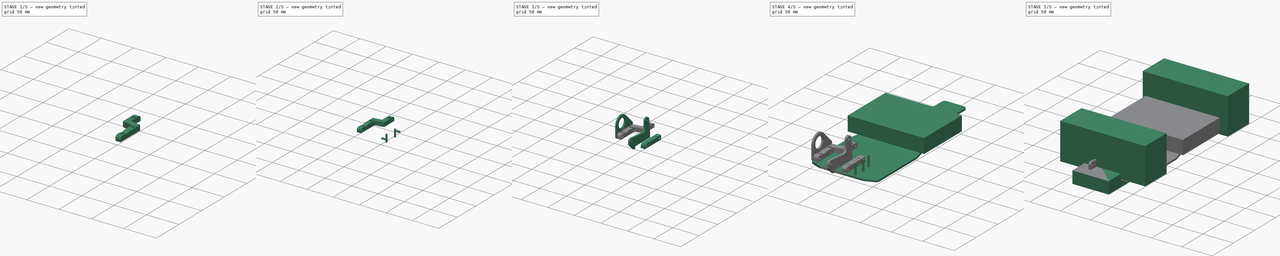
[diagram: build sequence overview — one tinted view per stage of 5, left to right]
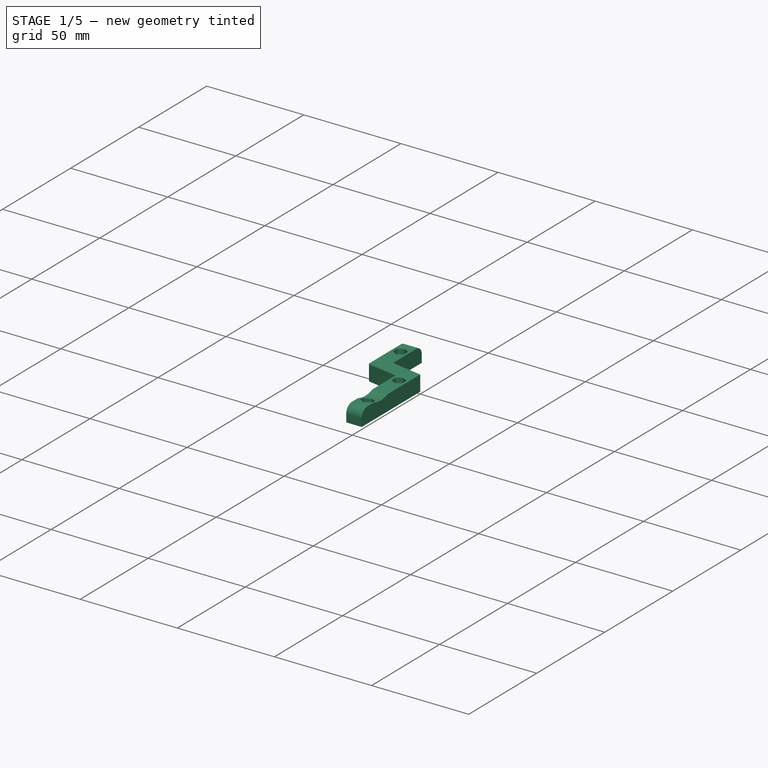
[diagram: stage 1 of 5 — iso view after this stage's code; geometry added in this stage tinted green]
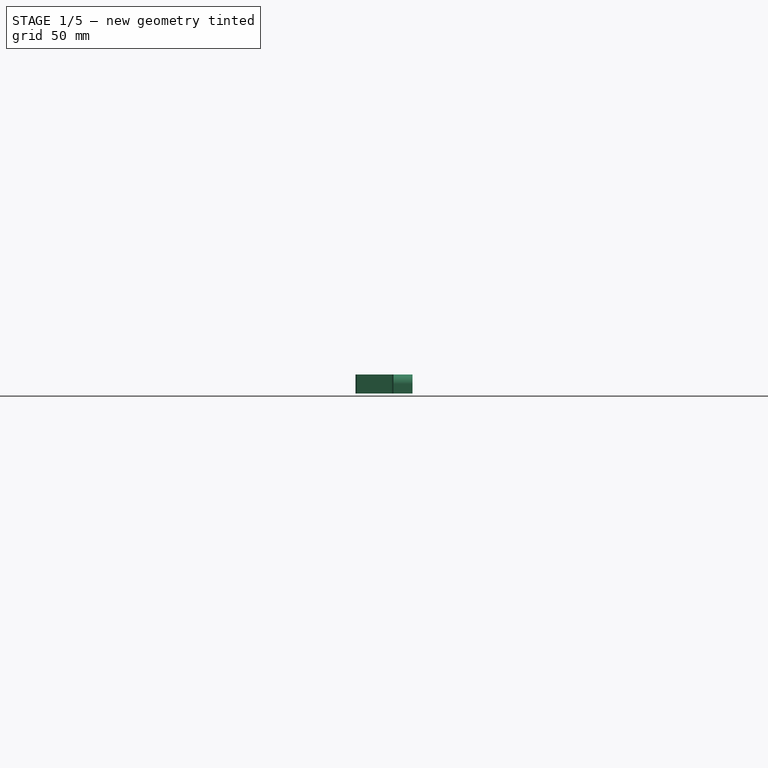
[diagram: stage 1 of 5 — front view after this stage's code; geometry added in this stage tinted green]
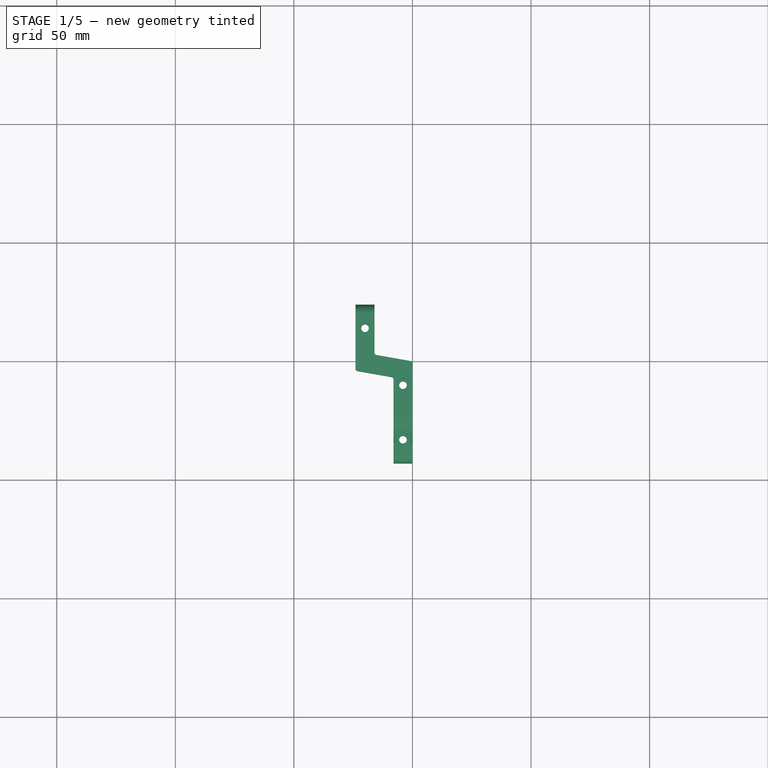
[diagram: stage 1 of 5 — top view after this stage's code; geometry added in this stage tinted green]
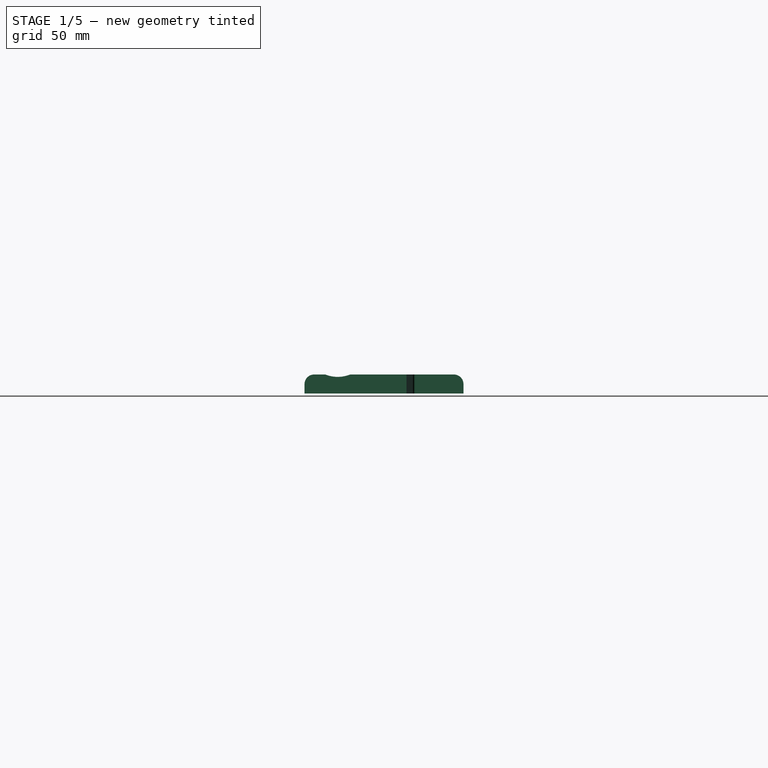
[diagram: stage 1 of 5 — right view after this stage's code; geometry added in this stage tinted green]
FCSTD DOCUMENT  (FreeCAD 0.16R6712 (Git))
Label: chassis
License: All rights reserved
LicenseURL: http://en.wikipedia.org/wiki/All_rights_reserved
objects: Part::Cylinder×15, Part::MultiFuse×8, Sketcher::SketchObject×7, Part::Cut×6, PartDesign::Pad×6, Part::Box×5, Part::Fillet×5, Part::Mirroring×4, Part::Prism×3
note: 65 computed .brp shape members not serialized (recipe doc carries the construction recipe); baked Part::Feature solids carry a one-line shape summary decoded from their .brp

FEATURE [PartDesign::Pad] Pad005
  Length = 8
  Length2 = 100
  Placement = pos=(0,0,4) rot=(0,0,1;0rad)
  Sketch = -> Sketch008
  Type = 0
FEATURE [Part::Fillet] Fillet003
  Base = -> Pad005
  Edges = 3 edges r=1: [Edge2,Edge5,Edge17]
FEATURE [Part::Fillet] Fillet004
  Base = -> Fillet003
  Edges = 2 edges r=4: [Edge21,Edge28]
FEATURE [Part::Prism] Prism
  Circumradius = 3.2
  Height = 10
  Placement = pos=(46,17,8) rot=(0,0,1;1.5708rad)
  Polygon = 6
FEATURE [Part::Prism] Prism001
  Circumradius = 3.2
  Height = 10
  Placement = pos=(46,40,8) rot=(0,0,1;1.5708rad)
  Polygon = 6
FEATURE [Part::Prism] Prism002
  Circumradius = 3.2
  Height = 10
  Placement = pos=(30,64,8) rot=(0,0,1;1.5708rad)
  Polygon = 6
FEATURE [Part::MultiFuse] Fusion009
  Shapes = -> [Prism002,Prism001,Prism]
FEATURE [Part::Cut] Cut004
  Base = -> Fillet004
  Tool = -> Fusion009
FEATURE [Part::Cylinder] Cylinder014
  Angle = 360
  Height = 16
  Placement = pos=(40,21,25) rot=(0,1,0;1.5708rad)
  Radius = 14
FEATURE [Part::Cut] Cut005
  Base = -> Cut004
  Tool = -> Cylinder014
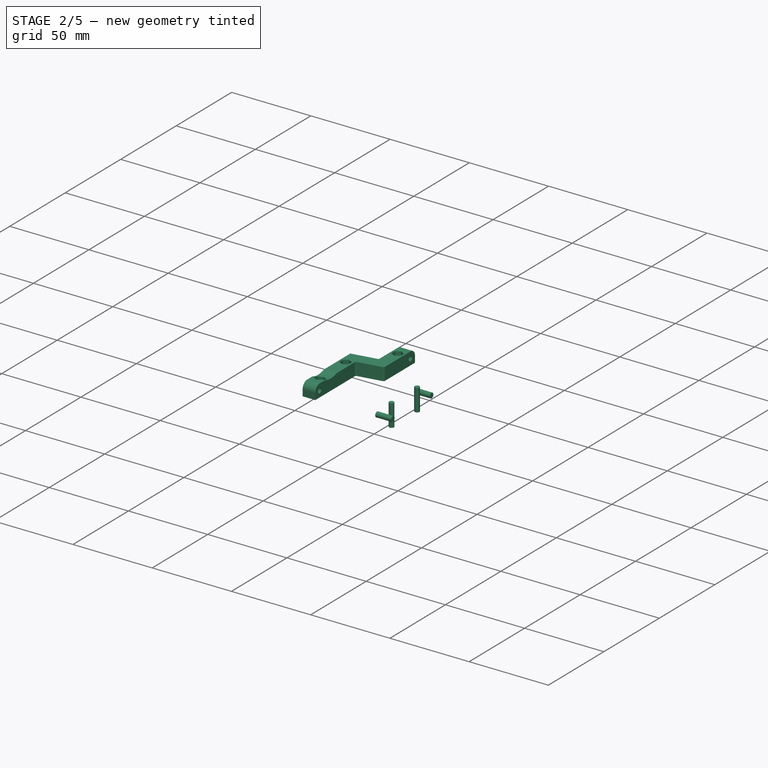
[diagram: stage 2 of 5 — iso view after this stage's code; geometry added in this stage tinted green]
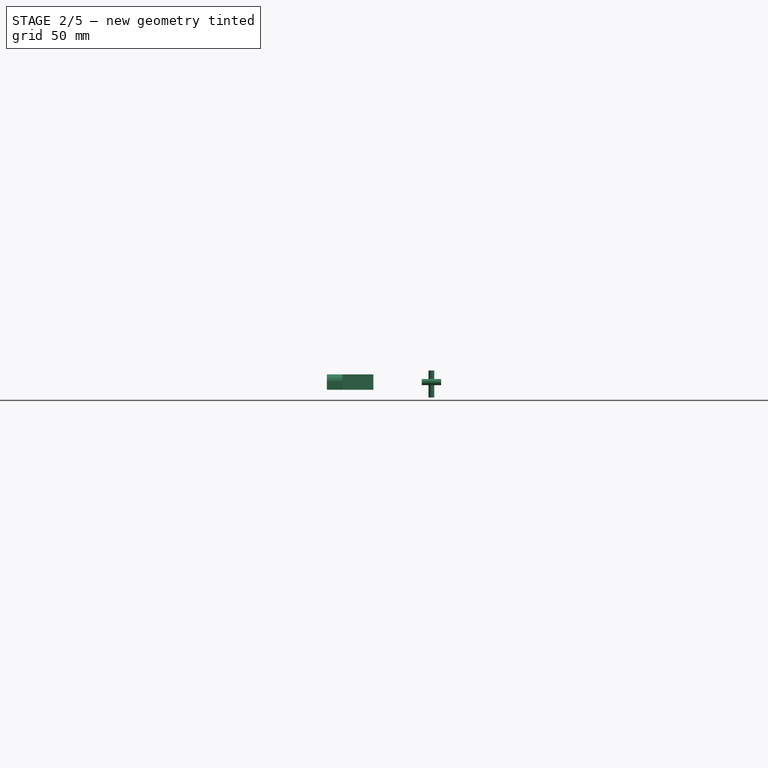
[diagram: stage 2 of 5 — front view after this stage's code; geometry added in this stage tinted green]
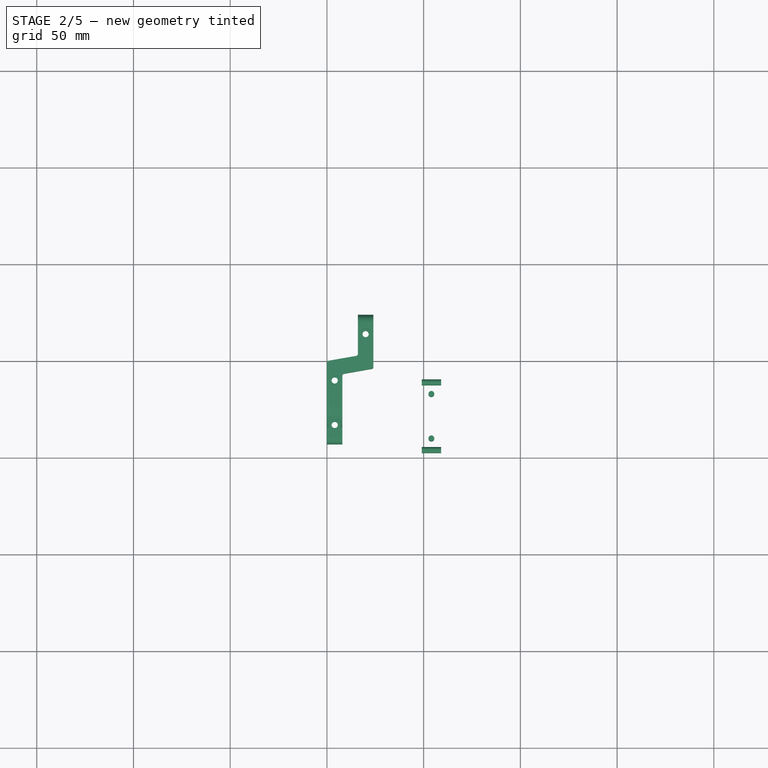
[diagram: stage 2 of 5 — top view after this stage's code; geometry added in this stage tinted green]
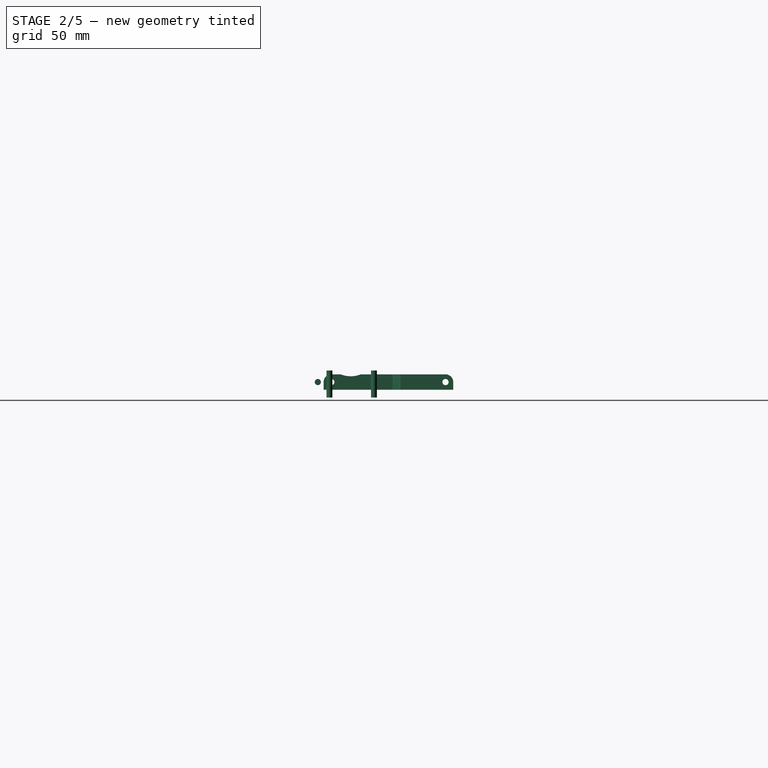
[diagram: stage 2 of 5 — right view after this stage's code; geometry added in this stage tinted green]
FEATURE [Part::Cylinder] Cylinder004
  Angle = 360
  Height = 10
  Placement = pos=(-1,4,8) rot=(0,1,0;1.5708rad)
  Radius = 1.6
FEATURE [Part::Cylinder] Cylinder005
  Angle = 360
  Height = 10
  Placement = pos=(-1,39,8) rot=(0,1,0;1.5708rad)
  Radius = 1.6
FEATURE [Part::Cylinder] Cylinder006
  Angle = 360
  Height = 14
  Placement = pos=(4,33,0) rot=(0,0,1;0rad)
  Radius = 1.5
FEATURE [Part::Cylinder] Cylinder007
  Angle = 360
  Height = 14
  Placement = pos=(4,10,0) rot=(0,0,1;0rad)
  Radius = 1.5
FEATURE [Part::MultiFuse] Fusion004
  Shapes = -> [Cylinder007,Cylinder006,Cylinder004,Cylinder005]
FEATURE [Sketcher::SketchObject] Sketch008
  Placement = pos=(0,0,4) rot=(0,0,1;0rad)
  sketch-geometry (17):
    g0: LineSegment StartX=26 StartY=74 StartZ=0 EndX=26 EndY=46.1084 EndZ=0
    g1: LineSegment StartX=26 StartY=46.1084 StartZ=0 EndX=42 EndY=43.2872 EndZ=0
    g2: LineSegment StartX=42 StartY=43.2872 StartZ=0 EndX=42 EndY=7 EndZ=0
    g3: LineSegment StartX=42 StartY=7 StartZ=0 EndX=50 EndY=7 EndZ=0
    g4: LineSegment StartX=50 StartY=7 StartZ=0 EndX=50 EndY=50 EndZ=0
    g5: LineSegment StartX=50 StartY=50 StartZ=0 EndX=34 EndY=52.8212 EndZ=0
    g6: LineSegment StartX=34 StartY=52.8212 StartZ=0 EndX=34 EndY=74 EndZ=0
    g7: LineSegment StartX=34 StartY=74 StartZ=0 EndX=26 EndY=74 EndZ=0
    g8: LineSegment [constr] StartX=34 StartY=52.8212 StartZ=0 EndX=32.6108 EndY=44.9428 EndZ=0
    g9: Circle CenterX=30 CenterY=64 CenterZ=0 NormalX=0 NormalY=0 NormalZ=1 Radius=1.6
    g10: Circle CenterX=46 CenterY=40 CenterZ=0 NormalX=0 NormalY=0 NormalZ=1 Radius=1.6
    g11: Circle CenterX=46 CenterY=17 CenterZ=0 NormalX=0 NormalY=0 NormalZ=1 Radius=1.6
    g12: LineSegment [constr] StartX=46 StartY=40 StartZ=0 EndX=46 EndY=17 EndZ=0
    g13: LineSegment [constr] StartX=46 StartY=17 StartZ=0 EndX=42 EndY=7 EndZ=0
    g14: LineSegment [constr] StartX=50 StartY=7 StartZ=0 EndX=46 EndY=17 EndZ=0
    g15: LineSegment [constr] StartX=26 StartY=74 StartZ=0 EndX=30 EndY=64 EndZ=0
    g16: LineSegment [constr] StartX=30 StartY=64 StartZ=0 EndX=34 EndY=74 EndZ=0
  constraints (46):
    c: Vertical(g0)
    c: Coincident(g0,g1)
    c: Coincident(g1,g2)
    c: Vertical(g2)
    c: Coincident(g2,g3)
    c: Horizontal(g3)
    c: Coincident(g3,g4)
    c: Vertical(g4)
    c: Coincident(g4,g5)
    c: Coincident(g5,g6)
    c: Vertical(g6)
    c: Coincident(g6,g7)
    c: Coincident(g7,g0)
    c: Horizontal(g7)
    c: Equal(g7,g3)
    c: Distance(g4) = 43
    c: Distance(g3) = 8
    c: DistanceX(g5,g4) = 16
    c: Parallel(g5,g1)
    c: Coincident(g8,g5)
    c: PointOnObject(g8,g1)
    c: Perpendicular(g1,g8)
    c: Equal(g8,g7)
    c: DistanceX(g-1,g3) = 50
    c: DistanceY(g-1,g3) = 7
    c: Angle(g1,g2) = 1.74533
    c: DistanceY(g3,g6) = 67
    c: Coincident(g12,g10)
    c: Coincident(g12,g11)
    c: Vertical(g12)
    c: Coincident(g13,g11)
    c: Coincident(g13,g2)
    c: Coincident(g14,g3)
    c: Coincident(g14,g11)
    c: Coincident(g15,g0)
    c: Coincident(g15,g9)
    c: Coincident(g16,g9)
    c: Coincident(g16,g6)
    c: Equal(g14,g13)
    c: Equal(g15,g16)
    c: Equal(g15,g13)
    c: Radius(g9) = 1.6
    c: Equal(g9,g10)
    c: Equal(g9,g11)
    c: DistanceY(g2,g11) = 10
    c: DistanceY(g10,g4) = 10
FEATURE [Part::Cylinder] Cylinder011
  Angle = 360
  Height = 37
  Placement = pos=(25,70,8) rot=(0,1,0;1.5708rad)
  Radius = 1.6
FEATURE [Part::Cylinder] Cylinder012
  Angle = 360
  Height = 37
  Placement = pos=(41,46,8) rot=(0,1,0;1.5708rad)
  Radius = 1.6
FEATURE [Part::Cylinder] Cylinder013
  Angle = 360
  Height = 37
  Placement = pos=(41,11,8) rot=(0,1,0;1.5708rad)
  Radius = 1.6
FEATURE [Part::MultiFuse] Fusion008
  Shapes = -> [Cylinder011,Cylinder012,Cylinder013]
FEATURE [Part::Cut] Cut006
  Base = -> Cut005
  Tool = -> Fusion008
FEATURE [Part::Mirroring] Part__Mirroring003  label="Cut006 (Mirror #4)"
  Base = (0,0,0)
  Normal = (1,0,0)
  Source = -> Cut006
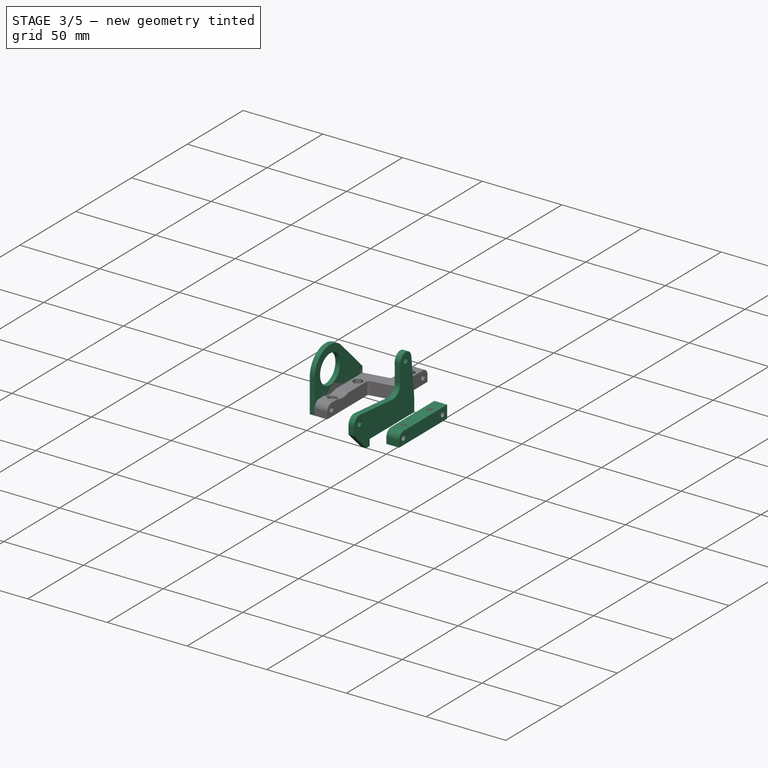
[diagram: stage 3 of 5 — iso view after this stage's code; geometry added in this stage tinted green]
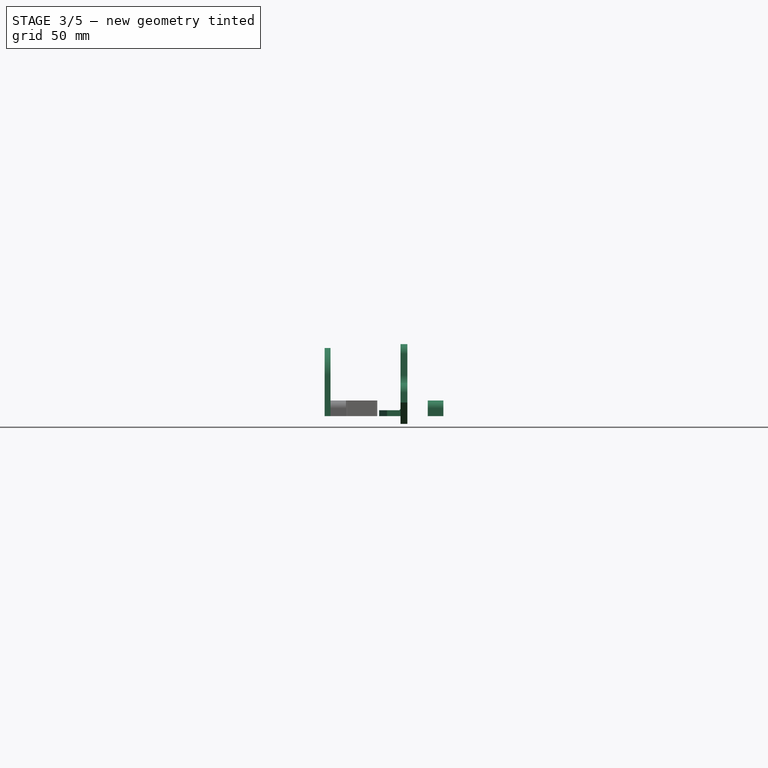
[diagram: stage 3 of 5 — front view after this stage's code; geometry added in this stage tinted green]
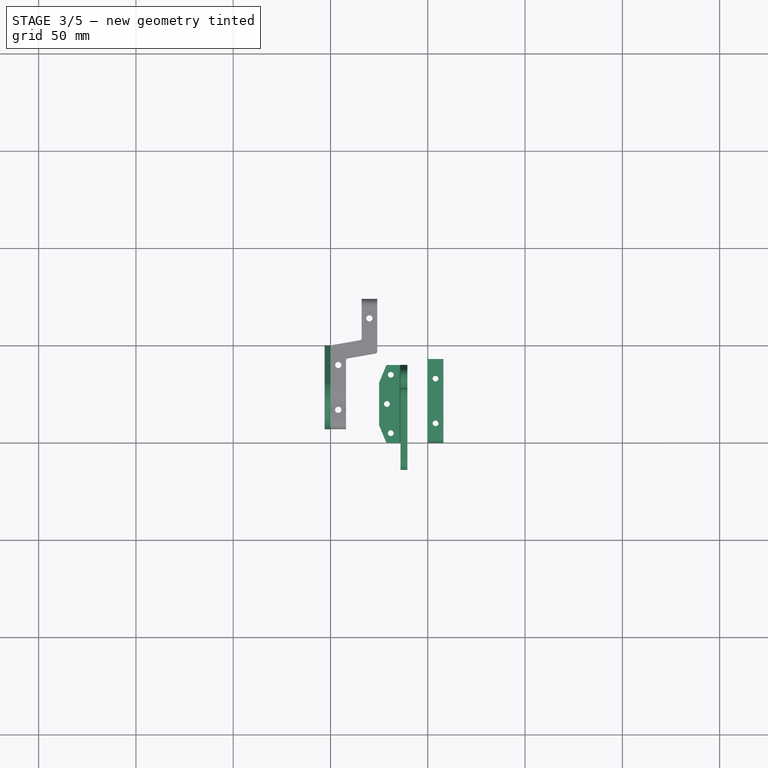
[diagram: stage 3 of 5 — top view after this stage's code; geometry added in this stage tinted green]
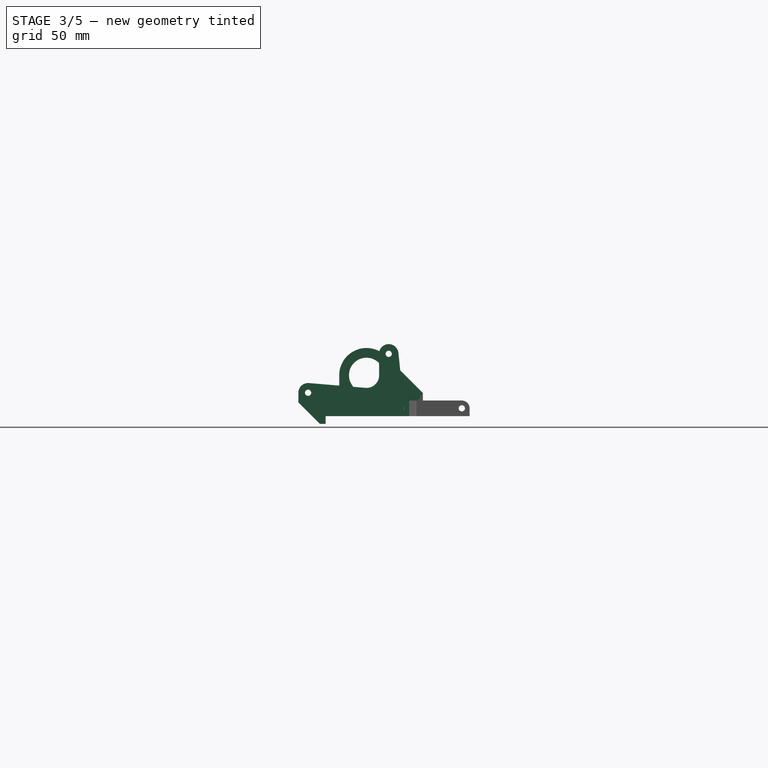
[diagram: stage 3 of 5 — right view after this stage's code; geometry added in this stage tinted green]
FEATURE [Sketcher::SketchObject] Sketch002
  Placement = pos=(10.5,0,0) rot=(0.57735,0.57735,0.57735;2.0944rad)
  sketch-geometry (15):
    g0: Circle CenterX=-9 CenterY=16 CenterZ=0 NormalX=0 NormalY=0 NormalZ=1 Radius=1.6
    g1: Circle CenterX=32.4246 CenterY=36 CenterZ=0 NormalX=0 NormalY=0 NormalZ=1 Radius=1.6
    g2: LineSegment StartX=27.4247 StartY=35.9656 StartZ=0 EndX=27.4998 EndY=25.0447 EndZ=0
    g3: LineSegment StartX=20.4514 StartY=18.5232 StartZ=0 EndX=-8.57796 EndY=20.9822 EndZ=0
    g4: LineSegment StartX=-3 StartY=0 StartZ=0 EndX=0 EndY=0 EndZ=0
    g5: LineSegment StartX=0 StartY=0 StartZ=0 EndX=0 EndY=4 EndZ=0
    g6: LineSegment StartX=0 StartY=4 StartZ=0 EndX=40 EndY=4 EndZ=0
    g7: LineSegment StartX=40 StartY=12 StartZ=0 EndX=37.3967 EndY=36.5277 EndZ=0
    g8: LineSegment StartX=-3 StartY=0 StartZ=0 EndX=-14 EndY=11 EndZ=0
    g9: LineSegment StartX=-14 StartY=16 StartZ=0 EndX=-14 EndY=11 EndZ=0
    g10: Circle [constr] CenterX=21 CenterY=25 CenterZ=0 NormalX=0 NormalY=0 NormalZ=1 Radius=5
    g11: ArcOfCircle CenterX=21 CenterY=25 CenterZ=0 NormalX=0 NormalY=0 NormalZ=1 Radius=6.5 StartAngle=4.62788 EndAngle=6.29006
    g12: ArcOfCircle CenterX=32.4246 CenterY=36 CenterZ=0 NormalX=0 NormalY=0 NormalZ=1 Radius=5 StartAngle=0.105737 EndAngle=3.14847
    g13: ArcOfCircle CenterX=-9 CenterY=16 CenterZ=0 NormalX=0 NormalY=0 NormalZ=1 Radius=5 StartAngle=1.48629 EndAngle=3.14159
    g14: LineSegment StartX=40 StartY=12 StartZ=0 EndX=40 EndY=4 EndZ=0
  constraints (45):
    c: PointOnObject(g4,g-1)
    c: Horizontal(g4)
    c: Coincident(g4,g5)
    c: Vertical(g5)
    c: Coincident(g5,g6)
    c: Horizontal(g6)
    c: Distance(g0,g1) = 46
    c: Radius(g0) = 1.6
    c: Equal(g0,g1)
    c: Distance(g1,g6) = 32
    c: Distance(g0,g6) = 12
    c: DistanceX(g0,g5) = 9
    c: Distance(g5) = 4
    c: PointOnObject(g5,g-2)
    c: Coincident(g8,g4)
    c: Coincident(g9,g8)
    c: Vertical(g9)
    c: DistanceX(g-1,g10) = 21
    c: DistanceY(g-1,g10) = 25
    c: Coincident(g11,g10)
    c: Tangent(g3,g11)
    c: Coincident(g2,g11)
    c: Tangent(g11,g2)
    c: Coincident(g12,g1)
    c: Coincident(g12,g2)
    c: Coincident(g12,g7)
    c: Tangent(g2,g12)
    c: Tangent(g7,g12)
    c: Radius(g12) = 5
    c: Coincident(g11,g3)
    c: Coincident(g13,g3)
    c: Coincident(g13,g9)
    c: Tangent(g13,g3)
    c: Radius(g13) = 5
    c: Tangent(g13,g9)
    c: Coincident(g13,g0)
    c: Angle(g4,g8) = 2.35619
    c: Radius(g11) = 6.5
    c: Radius(g10) = 5
    c: Distance(g4) = 3
    c: Coincident(g14,g7)
    c: Coincident(g14,g6)
    c: Vertical(g14)
    c: Distance(g14) = 8
    c: Distance(g6) = 40
FEATURE [PartDesign::Pad] Pad002
  Length = 3.5
  Length2 = 100
  Placement = pos=(10.5,0,0) rot=(0.57735,0.57735,0.57735;2.0944rad)
  Sketch = -> Sketch002
  Type = 0
FEATURE [Part::Box] Box004  label="Cube004"
  Height = 8
  Length = 8
  Placement = pos=(0,0,4) rot=(0,0,1;0rad)
  Width = 43
FEATURE [Sketcher::SketchObject] Sketch005
  Placement = pos=(50,0,0) rot=(0.57735,0.57735,0.57735;2.0944rad)
  sketch-geometry (9):
    g0: Circle CenterX=21 CenterY=25 CenterZ=0 NormalX=0 NormalY=0 NormalZ=1 Radius=9
    g1: ArcOfCircle CenterX=21 CenterY=25 CenterZ=0 NormalX=0 NormalY=0 NormalZ=1 Radius=14 StartAngle=0.785396 EndAngle=3.14159
    g2: LineSegment StartX=7 StartY=25 StartZ=0 EndX=7 EndY=4 EndZ=0
    g3: LineSegment StartX=7 StartY=4 StartZ=0 EndX=50 EndY=4 EndZ=0
    g4: LineSegment StartX=50 StartY=4 StartZ=0 EndX=50 EndY=15.799 EndZ=0
    g5: LineSegment StartX=50 StartY=15.799 StartZ=0 EndX=30.8995 EndY=34.8995 EndZ=0
    g6: Circle CenterX=11 CenterY=8 CenterZ=0 NormalX=0 NormalY=0 NormalZ=1 Radius=1.6
    g7: Circle CenterX=46 CenterY=8 CenterZ=0 NormalX=0 NormalY=0 NormalZ=1 Radius=1.6
    g8: LineSegment [constr] StartX=11 StartY=8 StartZ=0 EndX=46 EndY=8 EndZ=0
  constraints (25):
    c: Coincident(g1,g0)
    c: Tangent(g1,g2) = -1.5708
    c: Coincident(g2,g3)
    c: Horizontal(g3)
    c: Coincident(g3,g4)
    c: Coincident(g4,g5)
    c: Coincident(g5,g1)
    c: Vertical(g2)
    c: Tangent(g1,g5)
    c: Radius(g1) = 14
    c: Radius(g0) = 9
    c: Vertical(g4)
    c: Angle(g5,g4) = 2.35619
    c: Equal(g6,g7)
    c: Radius(g7) = 1.6
    c: Coincident(g8,g6)
    c: Coincident(g8,g7)
    c: Horizontal(g8)
    c: DistanceY(g-1,g2) = 4
    c: DistanceY(g2,g6) = 4
    c: Distance(g6,g2) = 4
    c: Distance(g0,g3) = 21
    c: Distance(g7,g4) = 4
    c: Distance(g8) = 35
    c: DistanceX(g-2,g0) = 21
FEATURE [PartDesign::Pad] Pad003
  Length = 3
  Length2 = 100
  Placement = pos=(50,0,0) rot=(0.57735,0.57735,0.57735;2.0944rad)
  Sketch = -> Sketch005
  Type = 0
FEATURE [Part::Cut] Cut003
  Base = -> Box004
  Tool = -> Fusion004
FEATURE [Sketcher::SketchObject] Sketch006
  Placement = pos=(0,0,4) rot=(0,0,1;0rad)
  sketch-geometry (15):
    g0: LineSegment StartX=13 StartY=40 StartZ=0 EndX=21.25 EndY=40 EndZ=0
    g1: LineSegment StartX=21.25 StartY=40 StartZ=0 EndX=25 EndY=31 EndZ=0
    g2: LineSegment StartX=25 StartY=31 StartZ=0 EndX=25 EndY=9 EndZ=0
    g3: LineSegment StartX=25 StartY=9 StartZ=0 EndX=21.25 EndY=0 EndZ=0
    g4: LineSegment StartX=21.25 StartY=0 StartZ=0 EndX=13 EndY=0 EndZ=0
    g5: LineSegment StartX=13 StartY=0 StartZ=0 EndX=13 EndY=40 EndZ=0
    g6: Circle CenterX=19 CenterY=35 CenterZ=0 NormalX=0 NormalY=0 NormalZ=1 Radius=1.5
    g7: Circle CenterX=21 CenterY=20 CenterZ=0 NormalX=0 NormalY=0 NormalZ=1 Radius=1.5
    g8: Circle CenterX=19 CenterY=5 CenterZ=0 NormalX=0 NormalY=0 NormalZ=1 Radius=1.5
    g9: LineSegment [constr] StartX=19 StartY=35 StartZ=0 EndX=22.6923 EndY=36.5385 EndZ=0
    g10: LineSegment [constr] StartX=21 StartY=20 StartZ=0 EndX=25 EndY=20 EndZ=0
    g11: LineSegment [constr] StartX=19 StartY=5 StartZ=0 EndX=22.6923 EndY=3.46154 EndZ=0
    g12: LineSegment [constr] StartX=19 StartY=35 StartZ=0 EndX=19 EndY=20 EndZ=0
    g13: LineSegment [constr] StartX=19 StartY=20 StartZ=0 EndX=19 EndY=5 EndZ=0
    g14: LineSegment [constr] StartX=21 StartY=20 StartZ=0 EndX=19 EndY=20 EndZ=0
  constraints (43):
    c: Horizontal(g0)
    c: Coincident(g0,g1)
    c: Coincident(g1,g2)
    c: Vertical(g2)
    c: Coincident(g2,g3)
    c: Coincident(g3,g4)
    c: Horizontal(g4)
    c: Coincident(g4,g5)
    c: Vertical(g5)
    c: Coincident(g5,g0)
    c: Distance(g5) = 40
    c: PointOnObject(g4,g-1)
    c: Distance(g-1,g4) = 13
    c: Equal(g4,g0)
    c: Coincident(g9,g6)
    c: PointOnObject(g9,g1)
    c: Coincident(g10,g7)
    c: Horizontal(g10)
    c: Coincident(g11,g8)
    c: PointOnObject(g11,g3)
    c: Coincident(g12,g6)
    c: Vertical(g12)
    c: Coincident(g13,g12)
    c: Coincident(g13,g8)
    c: Vertical(g13)
    c: Coincident(g14,g7)
    c: Coincident(g14,g12)
    c: Horizontal(g14)
    c: Equal(g12,g13)
    c: Perpendicular(g3,g11)
    c: Distance(g8,g6) = 30
    c: DistanceY(g4,g8) = 5
    c: DistanceX(g4,g8) = 6
    c: Distance(g14) = 2
    c: Equal(g11,g10)
    c: Equal(g10,g9)
    c: Radius(g6) = 1.5
    c: Equal(g6,g7)
    c: Equal(g6,g8)
    c: PointOnObject(g10,g2)
    c: Equal(g1,g3)
    c: Distance(g10) = 4
    c: Distance(g2) = 22
FEATURE [PartDesign::Pad] Pad004
  Length = 3
  Length2 = 100
  Placement = pos=(0,0,4) rot=(0,0,1;0rad)
  Sketch = -> Sketch006
  Type = 0
FEATURE [Part::MultiFuse] Fusion007
  Shapes = -> [Pad004,Pad002]
FEATURE [Part::Fillet] Fillet001
  Base = -> Fusion007
  Edges = 5 edges r=1: [Edge1,Edge2,Edge5,Edge11,Edge15]
FEATURE [Part::Mirroring] Part__Mirroring001  label="Fillet001 (Mirror #2)"
  Base = (0,0,0)
  Normal = (1,0,0)
  Source = -> Fillet001
FEATURE [Sketcher::SketchObject] Sketch007
  Placement = pos=(10.5,0,0) rot=(0.57735,0.57735,0.57735;2.0944rad)
  sketch-geometry (15):
    g0: Circle CenterX=-9 CenterY=16 CenterZ=0 NormalX=0 NormalY=0 NormalZ=1 Radius=1.6
    g1: Circle CenterX=32.4246 CenterY=36 CenterZ=0 NormalX=0 NormalY=0 NormalZ=1 Radius=1.6
    g2: LineSegment StartX=27.4247 StartY=35.9656 StartZ=0 EndX=27.4998 EndY=25.0447 EndZ=0
    g3: LineSegment StartX=20.4514 StartY=18.5232 StartZ=0 EndX=-8.57796 EndY=20.9822 EndZ=0
    g4: LineSegment StartX=-3 StartY=0 StartZ=0 EndX=0 EndY=0 EndZ=0
    g5: LineSegment StartX=0 StartY=0 StartZ=0 EndX=0 EndY=4 EndZ=0
    g6: LineSegment StartX=0 StartY=4 StartZ=0 EndX=40 EndY=4 EndZ=0
    g7: LineSegment StartX=40 StartY=12 StartZ=0 EndX=37.3967 EndY=36.5277 EndZ=0
    g8: LineSegment StartX=-3 StartY=0 StartZ=0 EndX=-14 EndY=11 EndZ=0
    g9: LineSegment StartX=-14 StartY=16 StartZ=0 EndX=-14 EndY=11 EndZ=0
    g10: Circle CenterX=21 CenterY=25 CenterZ=0 NormalX=0 NormalY=0 NormalZ=1 Radius=5
    g11: ArcOfCircle CenterX=21 CenterY=25 CenterZ=0 NormalX=0 NormalY=0 NormalZ=1 Radius=6.5 StartAngle=4.62788 EndAngle=6.29006
    g12: ArcOfCircle CenterX=32.4246 CenterY=36 CenterZ=0 NormalX=0 NormalY=0 NormalZ=1 Radius=5 StartAngle=0.105737 EndAngle=3.14847
    g13: ArcOfCircle CenterX=-9 CenterY=16 CenterZ=0 NormalX=0 NormalY=0 NormalZ=1 Radius=5 StartAngle=1.48629 EndAngle=3.14159
    g14: LineSegment StartX=40 StartY=12 StartZ=0 EndX=40 EndY=4 EndZ=0
  constraints (45):
    c: PointOnObject(g4,g-1)
    c: Horizontal(g4)
    c: Coincident(g4,g5)
    c: Vertical(g5)
    c: Coincident(g5,g6)
    c: Horizontal(g6)
    c: Distance(g0,g1) = 46
    c: Radius(g0) = 1.6
    c: Equal(g0,g1)
    c: Distance(g1,g6) = 32
    c: Distance(g0,g6) = 12
    c: DistanceX(g0,g5) = 9
    c: Distance(g5) = 4
    c: PointOnObject(g5,g-2)
    c: Coincident(g8,g4)
    c: Coincident(g9,g8)
    c: Vertical(g9)
    c: DistanceX(g-1,g10) = 21
    c: DistanceY(g-1,g10) = 25
    c: Coincident(g11,g10)
    c: Tangent(g3,g11)
    c: Coincident(g2,g11)
    c: Tangent(g11,g2)
    c: Coincident(g12,g1)
    c: Coincident(g12,g2)
    c: Coincident(g12,g7)
    c: Tangent(g2,g12)
    c: Tangent(g7,g12)
    c: Radius(g12) = 5
    c: Coincident(g11,g3)
    c: Coincident(g13,g3)
    c: Coincident(g13,g9)
    c: Tangent(g13,g3)
    c: Radius(g13) = 5
    c: Tangent(g13,g9)
    c: Coincident(g13,g0)
    c: Angle(g4,g8) = 2.35619
    c: Radius(g11) = 6.5
    c: Radius(g10) = 5
    c: Distance(g4) = 3
    c: Coincident(g14,g7)
    c: Coincident(g14,g6)
    c: Vertical(g14)
    c: Distance(g14) = 8
    c: Distance(g6) = 40
FEATURE [Part::Mirroring] Part__Mirroring002  label="Pad003 (Mirror #3)"
  Base = (0,0,0)
  Normal = (1,0,0)
  Source = -> Pad003
FEATURE [Part::Fillet] Fillet002
  Base = -> Cut003
  Edges = 1 edges r=4: [Edge9]
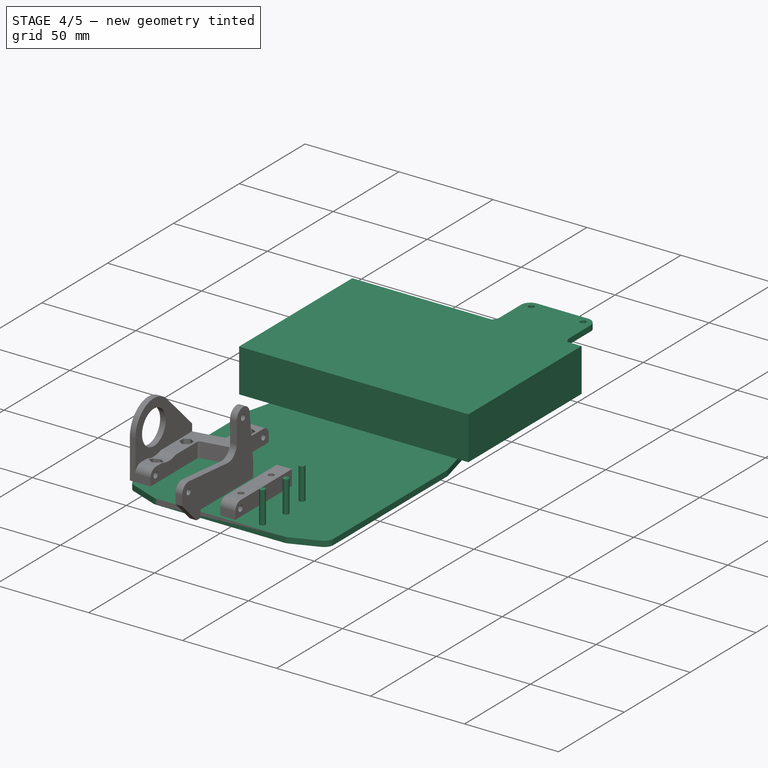
[diagram: stage 4 of 5 — iso view after this stage's code; geometry added in this stage tinted green]
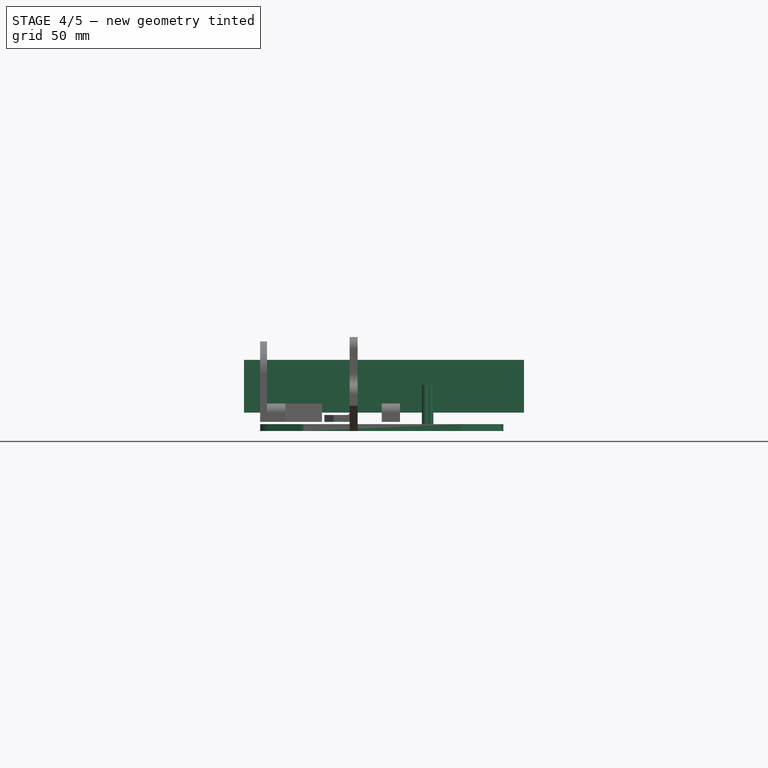
[diagram: stage 4 of 5 — front view after this stage's code; geometry added in this stage tinted green]
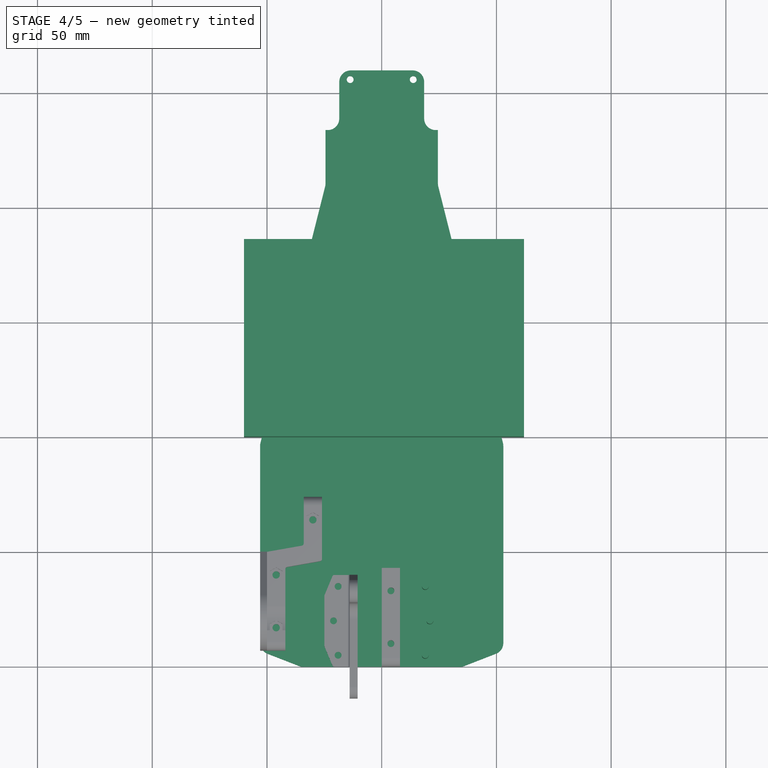
[diagram: stage 4 of 5 — top view after this stage's code; geometry added in this stage tinted green]
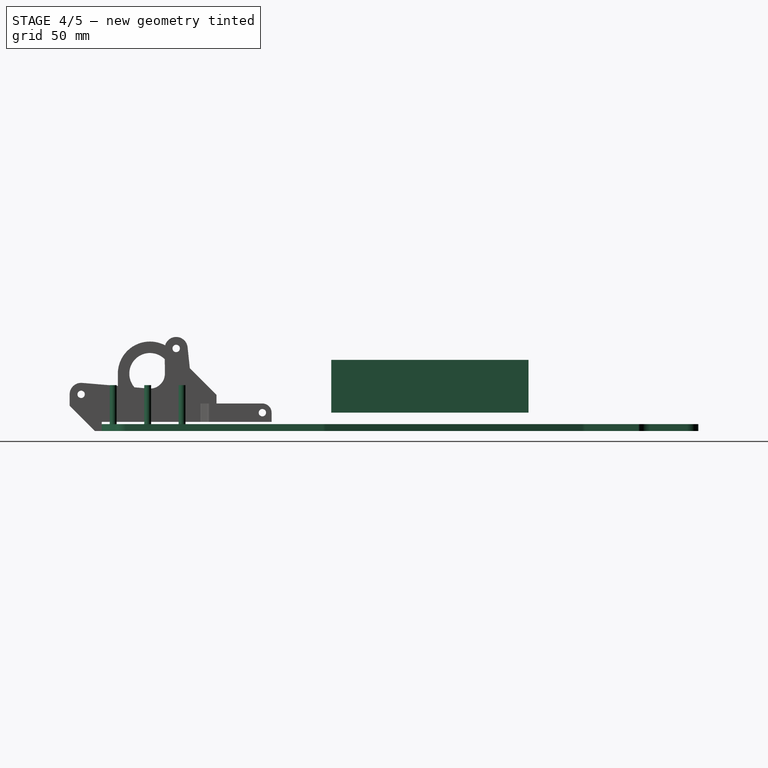
[diagram: stage 4 of 5 — right view after this stage's code; geometry added in this stage tinted green]
FEATURE [Sketcher::SketchObject] Sketch001
  Placement = pos=(0,0,10) rot=(0,0,1;0rad)
  sketch-geometry (4):
    g0: LineSegment StartX=-29.9532 StartY=-28.5283 StartZ=0 EndX=29.9532 EndY=-28.5283 EndZ=0
    g1: LineSegment StartX=29.9532 StartY=-28.5283 StartZ=0 EndX=29.9532 EndY=26.0479 EndZ=0
    g2: LineSegment StartX=29.9532 StartY=26.0479 StartZ=0 EndX=-29.9532 EndY=26.0479 EndZ=0
    g3: LineSegment StartX=-29.9532 StartY=26.0479 StartZ=0 EndX=-29.9532 EndY=-28.5283 EndZ=0
  constraints (8):
    c: Coincident(g0,g1)
    c: Coincident(g1,g2)
    c: Coincident(g2,g3)
    c: Coincident(g3,g0)
    c: Horizontal(g0)
    c: Vertical(g1)
    c: Vertical(g3)
    c: Symmetric(g2,g1,g-2)
FEATURE [Part::Cylinder] Cylinder002
  Angle = 360
  Height = 10
  Placement = pos=(-13.75,256,-1e-06) rot=(0,0,1;0rad)
  Radius = 1.5
FEATURE [Part::Cylinder] Cylinder003
  Angle = 360
  Height = 10
  Placement = pos=(13.75,256,-1e-06) rot=(0,0,1;0rad)
  Radius = 1.5
FEATURE [Part::MultiFuse] Fusion002
  Shapes = -> [Cylinder003,Cylinder002]
FEATURE [Part::Box] Box003  label="Cube003"
  Height = 23
  Length = 122
  Placement = pos=(-60,100,8) rot=(0,0,1;0rad)
  Width = 86
FEATURE [PartDesign::Pad] Pad
  Length = 3
  Length2 = 100
  Sketch = -> Sketch
  Type = 0
FEATURE [Part::Cut] Cut
  Base = -> Pad
  Tool = -> Fusion002
FEATURE [Part::Fillet] Fillet
  Base = -> Cut
  Edges = 12 edges r=5: [Edge1,Edge2,Edge5,Edge8,Edge37,Edge38,Edge40,Edge41,Edge42,Edge43,Edge45,Edge46]
FEATURE [Part::Cylinder] Cylinder008
  Angle = 360
  Height = 20
  Placement = pos=(19,5,0) rot=(0,0,1;0rad)
  Radius = 1.5
FEATURE [Part::Cylinder] Cylinder009
  Angle = 360
  Height = 20
  Placement = pos=(19,35,0) rot=(0,0,1;0rad)
  Radius = 1.5
FEATURE [Part::Cylinder] Cylinder010
  Angle = 360
  Height = 20
  Placement = pos=(21,20,0) rot=(0,0,1;0rad)
  Radius = 1.5
FEATURE [Part::MultiFuse] Fusion006
  Shapes = -> [Cylinder008,Cylinder010,Cylinder009]
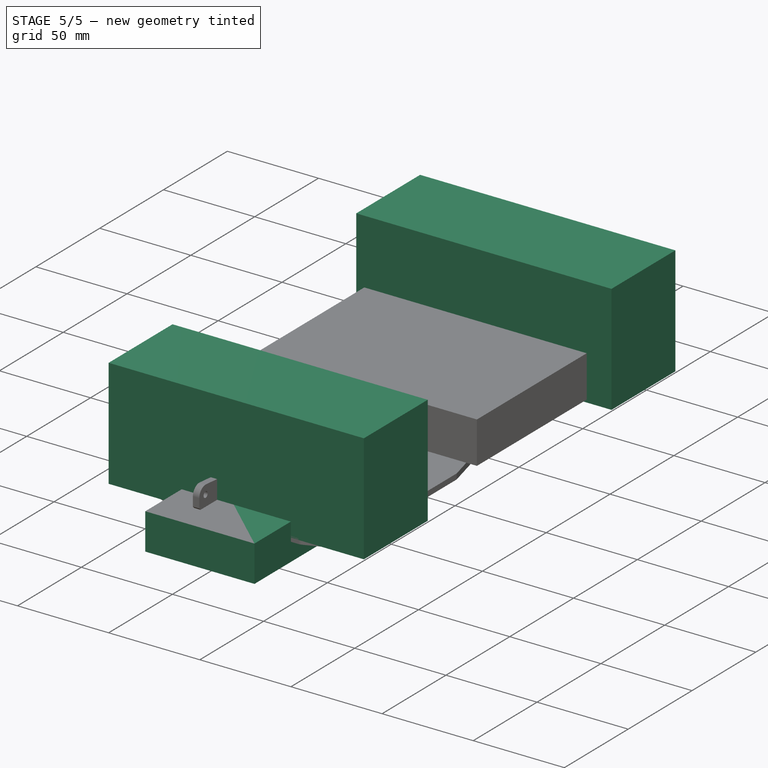
[diagram: stage 5 of 5 — iso view after this stage's code; geometry added in this stage tinted green]
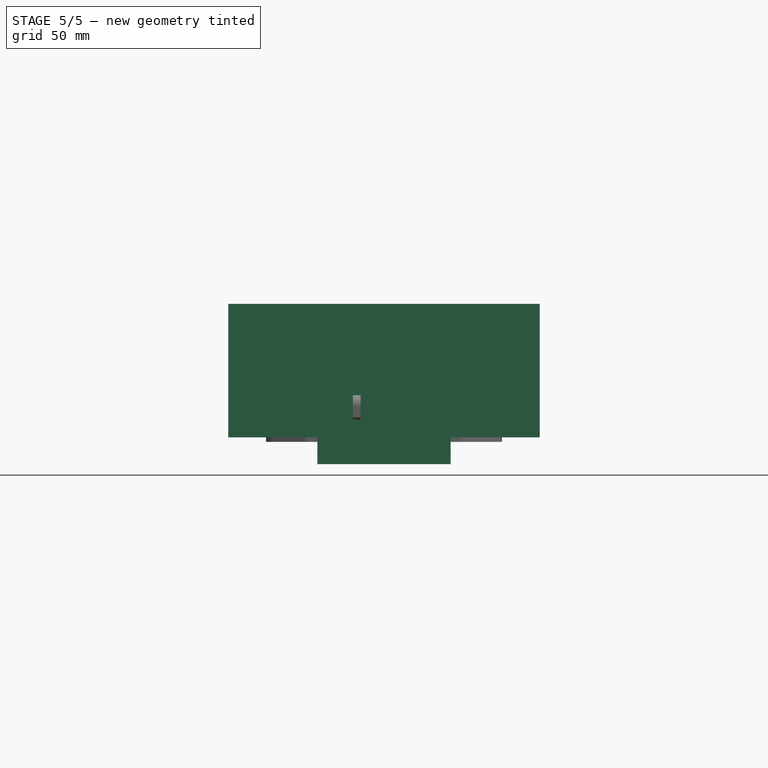
[diagram: stage 5 of 5 — front view after this stage's code; geometry added in this stage tinted green]
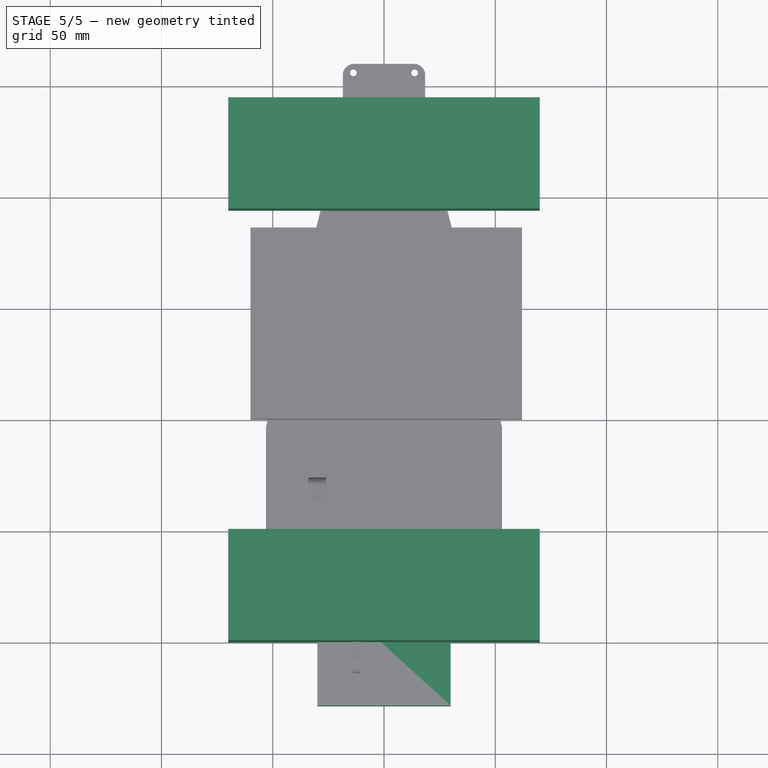
[diagram: stage 5 of 5 — top view after this stage's code; geometry added in this stage tinted green]
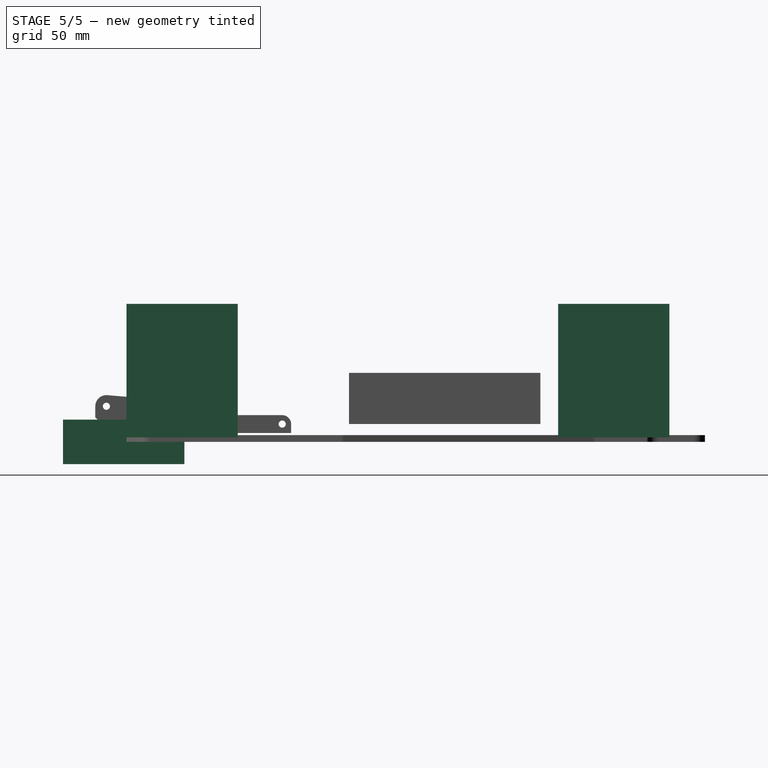
[diagram: stage 5 of 5 — right view after this stage's code; geometry added in this stage tinted green]
FEATURE [Sketcher::SketchObject] Sketch
  sketch-geometry (14):
    g0: LineSegment StartX=-53 StartY=7 StartZ=0 EndX=-53 EndY=97 EndZ=0
    g1: LineSegment StartX=-53 StartY=97 StartZ=0 EndX=-24.5 EndY=210 EndZ=0
    g2: LineSegment StartX=-18.5 StartY=260 StartZ=0 EndX=18.5 EndY=260 EndZ=0
    g3: LineSegment StartX=24.5 StartY=210 StartZ=0 EndX=53 EndY=97 EndZ=0
    g4: LineSegment StartX=53 StartY=97 StartZ=0 EndX=53 EndY=7 EndZ=0
    g5: LineSegment StartX=-53 StartY=7 StartZ=0 EndX=-35 EndY=0 EndZ=0
    g6: LineSegment StartX=-35 StartY=0 StartZ=0 EndX=35 EndY=0 EndZ=0
    g7: LineSegment StartX=35 StartY=0 StartZ=0 EndX=53 EndY=7 EndZ=0
    g8: LineSegment StartX=-18.5 StartY=260 StartZ=0 EndX=-18.5 EndY=234 EndZ=0
    g9: LineSegment StartX=-18.5 StartY=234 StartZ=0 EndX=-24.5 EndY=234 EndZ=0
    g10: LineSegment StartX=-24.5 StartY=234 StartZ=0 EndX=-24.5 EndY=210 EndZ=0
    g11: LineSegment StartX=24.5 StartY=210 StartZ=0 EndX=24.5 EndY=234 EndZ=0
    g12: LineSegment StartX=24.5 StartY=234 StartZ=0 EndX=18.5 EndY=234 EndZ=0
    g13: LineSegment StartX=18.5 StartY=234 StartZ=0 EndX=18.5 EndY=260 EndZ=0
  constraints (41):
    c: Vertical(g0)
    c: Coincident(g0,g1)
    c: Horizontal(g2)
    c: Coincident(g3,g4)
    c: Vertical(g4)
    c: Symmetric(g0,g4,g-2)
    c: Equal(g4,g0)
    c: Equal(g1,g3)
    c: Distance(g2) = 37
    c: DistanceY(g-1,g2) = 260
    c: Distance(g4) = 90
    c: Distance(g4,g0) = 106
    c: Coincident(g0,g5)
    c: PointOnObject(g5,g-1)
    c: Coincident(g5,g6)
    c: Horizontal(g6)
    c: Coincident(g6,g7)
    c: Coincident(g7,g4)
    c: Equal(g7,g5)
    c: Distance(g6) = 70
    c: DistanceY(g-1,g4) = 7
    c: Coincident(g2,g8)
    c: Vertical(g8)
    c: Coincident(g8,g9)
    c: Horizontal(g9)
    c: Coincident(g9,g10)
    c: Vertical(g10)
    c: Vertical(g11)
    c: Coincident(g11,g12)
    c: Horizontal(g12)
    c: Coincident(g12,g13)
    c: Coincident(g13,g2)
    c: Vertical(g13)
    c: Equal(g9,g12)
    c: Distance(g8) = 26
    c: Distance(g9) = 6
    c: Coincident(g10,g1)
    c: Coincident(g11,g3)
    c: Equal(g11,g10)
    c: Equal(g8,g13)
    c: DistanceY(g1,g2) = 50
FEATURE [Part::Box] Box  label="Cube"
  Height = 60
  Length = 140
  Placement = pos=(-70,0,2) rot=(0,0,1;0rad)
  Width = 50
FEATURE [Part::Box] Box001  label="Cube001"
  Height = 60
  Length = 140
  Placement = pos=(-70,194,2) rot=(0,0,1;0rad)
  Width = 50
FEATURE [Part::Box] Box002  label="Cube002"
  Height = 14
  Length = 5
  Placement = pos=(45,10,0) rot=(0,0,1;0rad)
  Width = 30
FEATURE [Part::Cylinder] Cylinder
  Angle = 360
  Height = 22
  Placement = pos=(36,15,8) rot=(0,1,0;1.5708rad)
  Radius = 1.5
FEATURE [Part::Cylinder] Cylinder001
  Angle = 360
  Height = 22
  Placement = pos=(36,35,8) rot=(0,1,0;1.5708rad)
  Radius = 1.5
FEATURE [Part::MultiFuse] Fusion
  Shapes = -> [Cylinder001,Cylinder]
FEATURE [Part::Cut] Cut002
  Base = -> Box002
  Tool = -> Fusion
FEATURE [Part::Mirroring] Part__Mirroring  label="Cut002 (Mirror #1)"
  Base = (0,0,0)
  Normal = (1,0,0)
  Source = -> Cut002
FEATURE [PartDesign::Pad] Pad001
  Length = 20
  Length2 = 100
  Placement = pos=(0,0,10) rot=(0,0,1;0rad)
  Reversed = true
  Sketch = -> Sketch001
  Type = 0
FEATURE [Part::MultiFuse] Fusion003
  Shapes = -> [Cut002,Part__Mirroring]
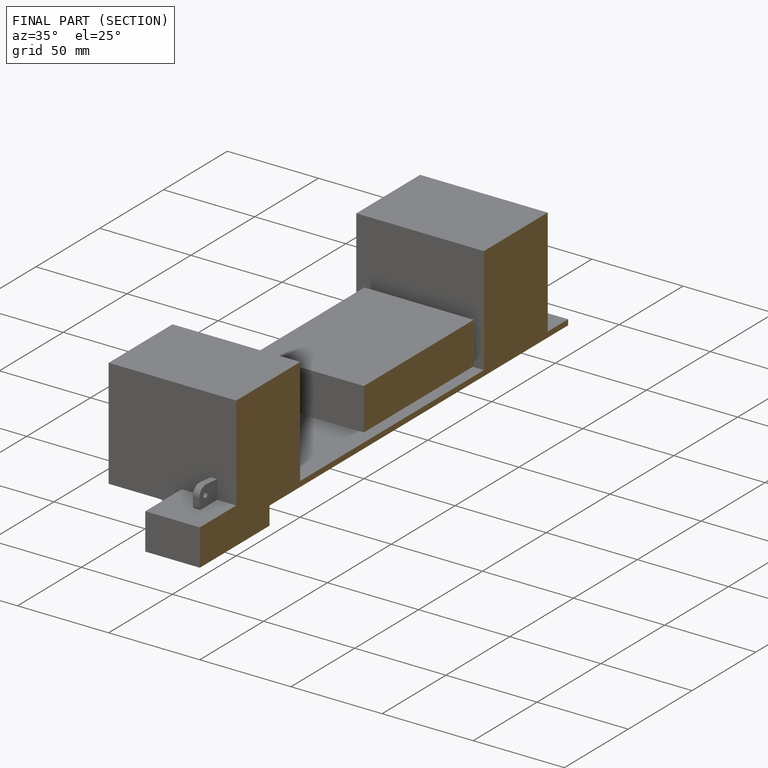
[diagram: finished part — half-section view (interior)]
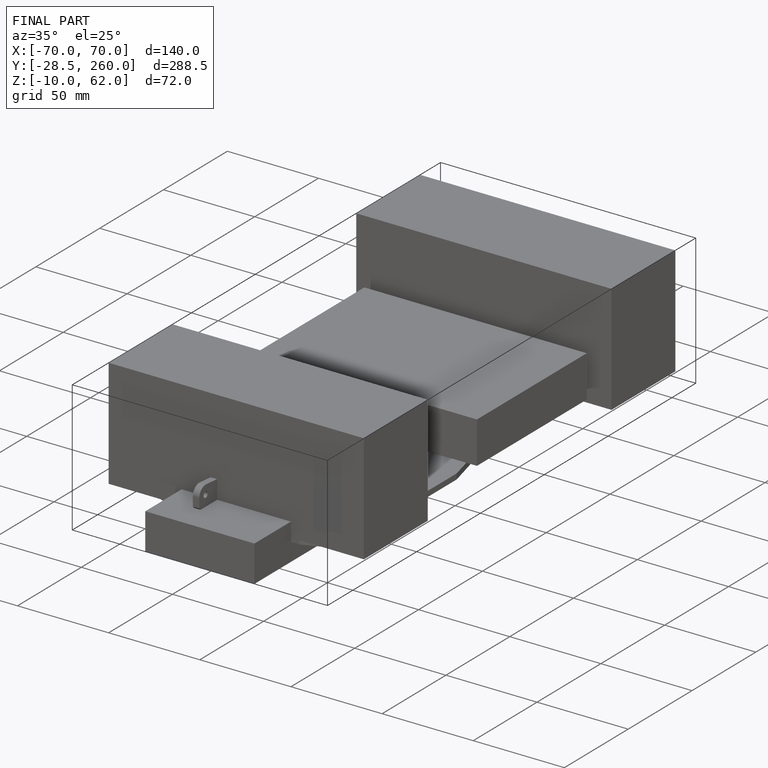
[diagram: finished part — iso view with bounding-box wireframe]
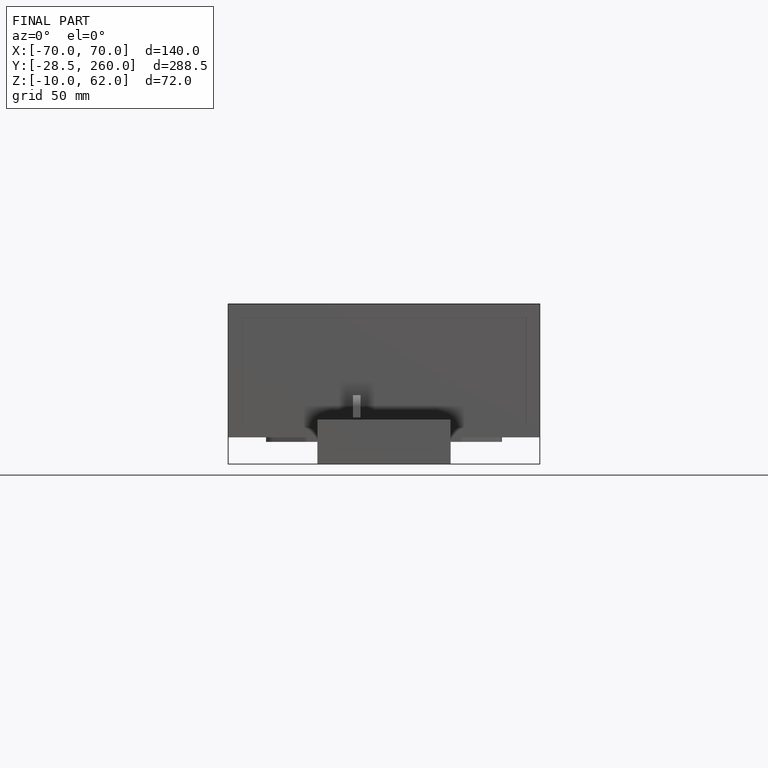
[diagram: finished part — front view with bounding-box wireframe]
